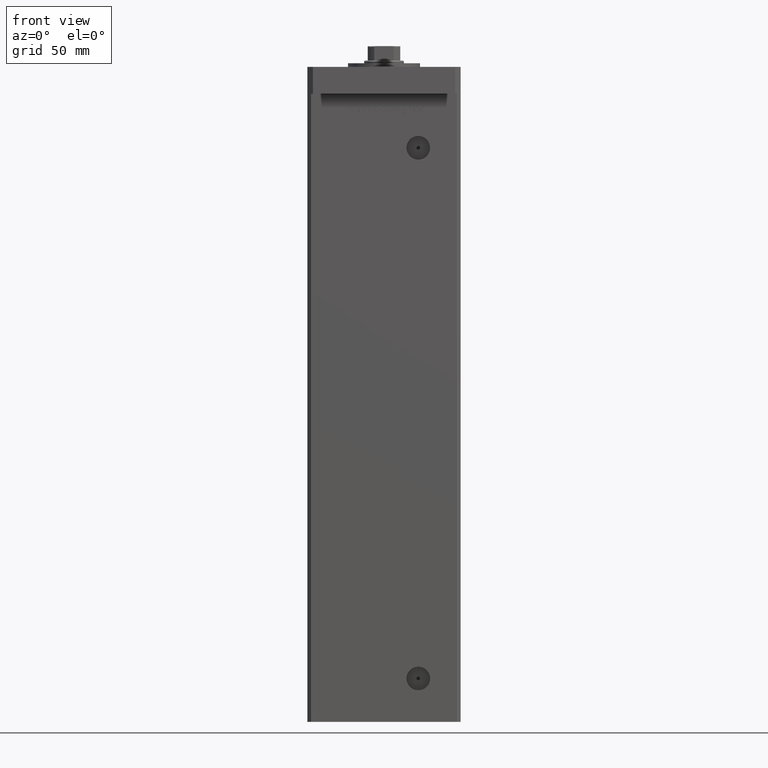
[diagram: clean part render]
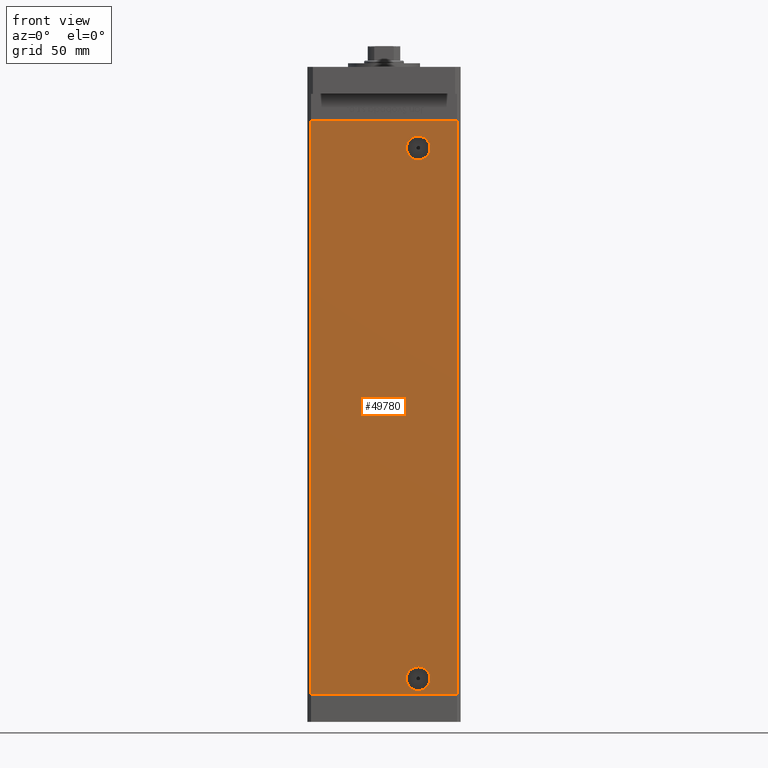
[diagram: same view with one face highlighted and labeled with its STEP entity id]
A machine part, front view. The second image highlights one B-rep face of the part: STEP entity #49780.
In plain terms, the highlighted planar face has unit normal (0, 1, 0).
Its self-contained STEP definition (entity closure, byte-faithful):
#1060 = VERTEX_POINT ( 'NONE', #15533 ) ;
#1325 = AXIS2_PLACEMENT_3D ( 'NONE', #36961, #29082, #37215 ) ;
#1434 = VERTEX_POINT ( 'NONE', #14938 ) ;
#3003 = DIRECTION ( 'NONE',  ( 0.000000000000000000, 0.000000000000000000, -1.000000000000000000 ) ) ;
#3685 = CARTESIAN_POINT ( 'NONE',  ( -40.49999999999998579, -37.50000000000000711, 318.5000000000000000 ) ) ;
#3988 = EDGE_CURVE ( 'NONE', #17575, #4912, #12676, .T. ) ;
#4050 = EDGE_CURVE ( 'NONE', #1434, #1060, #7220, .T. ) ;
#4463 = CARTESIAN_POINT ( 'NONE',  ( 40.49999999999998579, -37.50000000000000711, 0.000000000000000000 ) ) ;
#4680 = FACE_BOUND ( 'NONE', #52132, .T. ) ;
#4912 = VERTEX_POINT ( 'NONE', #17643 ) ;
#5805 = ORIENTED_EDGE ( 'NONE', *, *, #4050, .F. ) ;
#5892 = CARTESIAN_POINT ( 'NONE',  ( 18.99999999999995381, -37.50000000000000711, 296.9200000000000159 ) ) ;
#6802 = CARTESIAN_POINT ( 'NONE',  ( 18.99999999999998934, -37.50000000000000711, 9.000000000000007105 ) ) ;
#7220 = LINE ( 'NONE', #3685, #46469 ) ;
#9206 = AXIS2_PLACEMENT_3D ( 'NONE', #16501, #16771, #49619 ) ;
#9410 = DIRECTION ( 'NONE',  ( -0.000000000000000000, 1.000000000000000000, -0.000000000000000000 ) ) ;
#10795 = DIRECTION ( 'NONE',  ( -0.000000000000000000, -0.000000000000000000, -1.000000000000000000 ) ) ;
#11157 = AXIS2_PLACEMENT_3D ( 'NONE', #33981, #20985, #29928 ) ;
#11324 = LINE ( 'NONE', #31394, #43159 ) ;
#12288 = CIRCLE ( 'NONE', #52167, 6.579999999999998295 ) ;
#12306 = CARTESIAN_POINT ( 'NONE',  ( -40.49999999999998579, -37.50000000000000711, 318.5000000000000000 ) ) ;
#12545 = ORIENTED_EDGE ( 'NONE', *, *, #3988, .F. ) ;
#12676 = CIRCLE ( 'NONE', #9206, 6.579999999999998295 ) ;
#12745 = CARTESIAN_POINT ( 'NONE',  ( 18.99999999999998934, -37.50000000000000711, 2.420000000000009699 ) ) ;
#14938 = CARTESIAN_POINT ( 'NONE',  ( -40.49999999999998579, -37.50000000000000711, 318.5000000000000000 ) ) ;
#15533 = CARTESIAN_POINT ( 'NONE',  ( 40.49999999999998579, -37.50000000000000711, 318.5000000000000000 ) ) ;
#16501 = CARTESIAN_POINT ( 'NONE',  ( 18.99999999999998934, -37.50000000000000711, 9.000000000000007105 ) ) ;
#16771 = DIRECTION ( 'NONE',  ( 0.000000000000000000, -1.000000000000000000, 0.000000000000000000 ) ) ;
#16852 = VERTEX_POINT ( 'NONE', #5892 ) ;
#17013 = CARTESIAN_POINT ( 'NONE',  ( 18.99999999999995381, -37.50000000000000711, 303.5000000000000000 ) ) ;
#17575 = VERTEX_POINT ( 'NONE', #12745 ) ;
#17643 = CARTESIAN_POINT ( 'NONE',  ( 18.99999999999998934, -37.50000000000000711, 15.58000000000000718 ) ) ;
#17848 = ORIENTED_EDGE ( 'NONE', *, *, #42115, .F. ) ;
#19428 = DIRECTION ( 'NONE',  ( 1.000000000000000000, 0.000000000000000000, 0.000000000000000000 ) ) ;
#20414 = PLANE ( 'NONE',  #1325 ) ;
#20985 = DIRECTION ( 'NONE',  ( -0.000000000000000000, 1.000000000000000000, -0.000000000000000000 ) ) ;
#22237 = CARTESIAN_POINT ( 'NONE',  ( -40.49999999999998579, -37.50000000000000711, 0.000000000000000000 ) ) ;
#22714 = CIRCLE ( 'NONE', #27056, 6.579999999999975202 ) ;
#23665 = ORIENTED_EDGE ( 'NONE', *, *, #46313, .T. ) ;
#25019 = CIRCLE ( 'NONE', #11157, 6.579999999999975202 ) ;
#26577 = DIRECTION ( 'NONE',  ( 1.000000000000000000, 0.000000000000000000, 0.000000000000000000 ) ) ;
#27056 = AXIS2_PLACEMENT_3D ( 'NONE', #17013, #9410, #46311 ) ;
#28273 = ORIENTED_EDGE ( 'NONE', *, *, #47889, .T. ) ;
#29082 = DIRECTION ( 'NONE',  ( 0.000000000000000000, 1.000000000000000000, 0.000000000000000000 ) ) ;
#29928 = DIRECTION ( 'NONE',  ( 0.000000000000000000, 0.000000000000000000, -1.000000000000000000 ) ) ;
#31394 = CARTESIAN_POINT ( 'NONE',  ( 40.49999999999998579, -37.50000000000000711, 318.5000000000000000 ) ) ;
#31513 = EDGE_CURVE ( 'NONE', #1060, #48676, #11324, .T. ) ;
#32613 = FACE_OUTER_BOUND ( 'NONE', #48884, .T. ) ;
#33981 = CARTESIAN_POINT ( 'NONE',  ( 18.99999999999995381, -37.50000000000000711, 303.5000000000000000 ) ) ;
#34263 = EDGE_CURVE ( 'NONE', #40921, #16852, #25019, .T. ) ;
#35467 = CARTESIAN_POINT ( 'NONE',  ( 18.99999999999995381, -37.50000000000000711, 310.0799999999999841 ) ) ;
#35507 = ORIENTED_EDGE ( 'NONE', *, *, #42678, .T. ) ;
#35802 = ORIENTED_EDGE ( 'NONE', *, *, #34263, .T. ) ;
#36211 = EDGE_LOOP ( 'NONE', ( #12545, #17848 ) ) ;
#36961 = CARTESIAN_POINT ( 'NONE',  ( -40.49999999999998579, -37.50000000000000711, 318.5000000000000000 ) ) ;
#37215 = DIRECTION ( 'NONE',  ( 0.000000000000000000, -0.000000000000000000, 1.000000000000000000 ) ) ;
#40155 = DIRECTION ( 'NONE',  ( 0.000000000000000000, -1.000000000000000000, 0.000000000000000000 ) ) ;
#40921 = VERTEX_POINT ( 'NONE', #35467 ) ;
#41028 = FACE_BOUND ( 'NONE', #36211, .T. ) ;
#41878 = DIRECTION ( 'NONE',  ( -0.000000000000000000, -0.000000000000000000, -1.000000000000000000 ) ) ;
#42115 = EDGE_CURVE ( 'NONE', #4912, #17575, #12288, .T. ) ;
#42678 = EDGE_CURVE ( 'NONE', #16852, #40921, #22714, .T. ) ;
#43159 = VECTOR ( 'NONE', #10795, 1000.000000000000000 ) ;
#43735 = ORIENTED_EDGE ( 'NONE', *, *, #31513, .F. ) ;
#46311 = DIRECTION ( 'NONE',  ( 0.000000000000000000, 0.000000000000000000, -1.000000000000000000 ) ) ;
#46313 = EDGE_CURVE ( 'NONE', #46913, #48676, #51011, .T. ) ;
#46469 = VECTOR ( 'NONE', #19428, 1000.000000000000000 ) ;
#46913 = VERTEX_POINT ( 'NONE', #51086 ) ;
#47889 = EDGE_CURVE ( 'NONE', #1434, #46913, #49498, .T. ) ;
#48676 = VERTEX_POINT ( 'NONE', #4463 ) ;
#48838 = VECTOR ( 'NONE', #26577, 1000.000000000000000 ) ;
#48884 = EDGE_LOOP ( 'NONE', ( #23665, #43735, #5805, #28273 ) ) ;
#49498 = LINE ( 'NONE', #12306, #53211 ) ;
#49619 = DIRECTION ( 'NONE',  ( 0.000000000000000000, 0.000000000000000000, -1.000000000000000000 ) ) ;
#49780 = ADVANCED_FACE ( 'NONE', ( #41028, #32613, #4680 ), #20414, .F. ) ;
#51011 = LINE ( 'NONE', #22237, #48838 ) ;
#51086 = CARTESIAN_POINT ( 'NONE',  ( -40.49999999999998579, -37.50000000000000711, 0.000000000000000000 ) ) ;
#52132 = EDGE_LOOP ( 'NONE', ( #35507, #35802 ) ) ;
#52167 = AXIS2_PLACEMENT_3D ( 'NONE', #6802, #40155, #3003 ) ;
#53211 = VECTOR ( 'NONE', #41878, 1000.000000000000000 ) ;